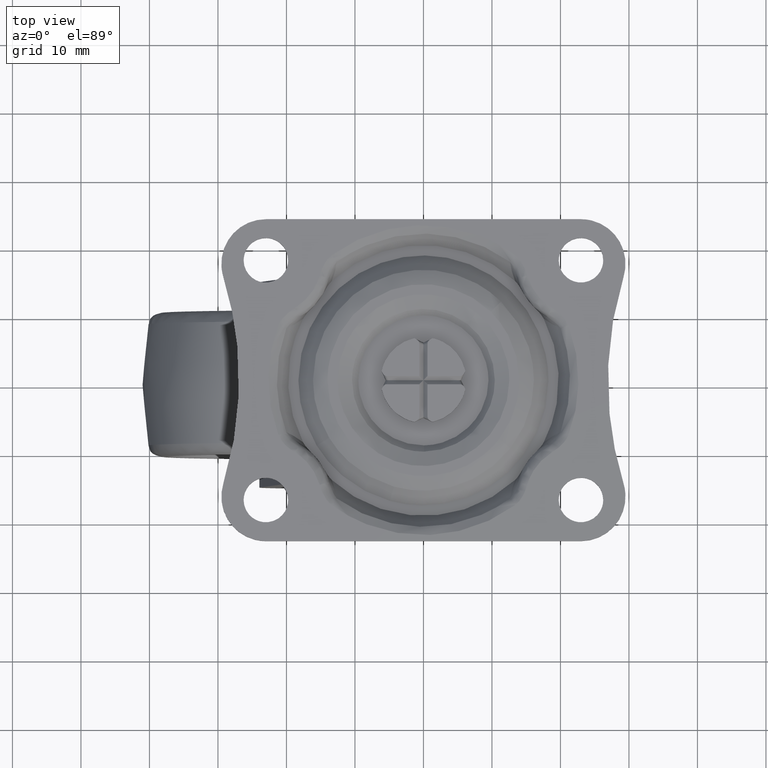
[diagram: clean part render]
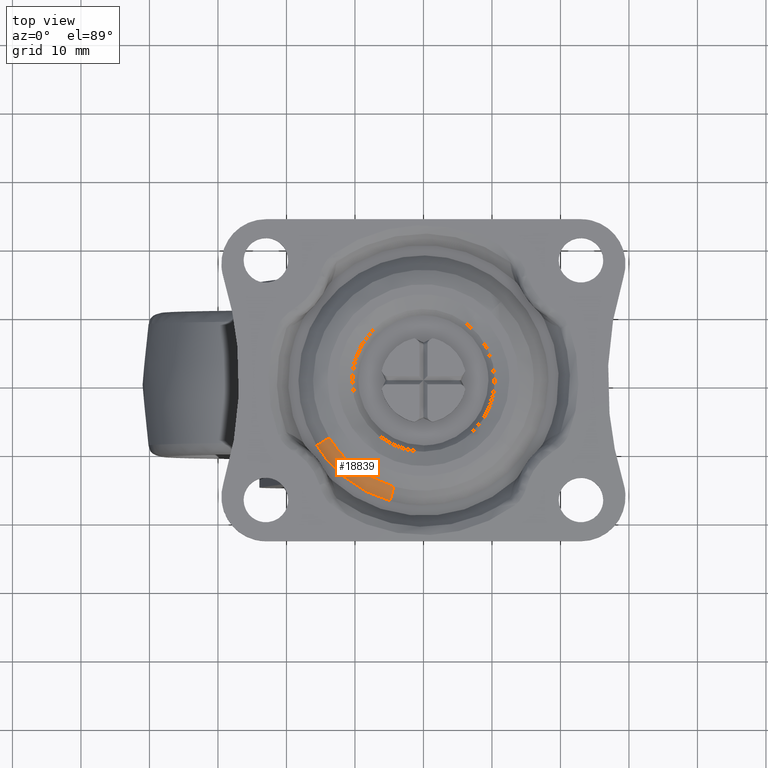
[diagram: same view with one face highlighted and labeled with its STEP entity id]
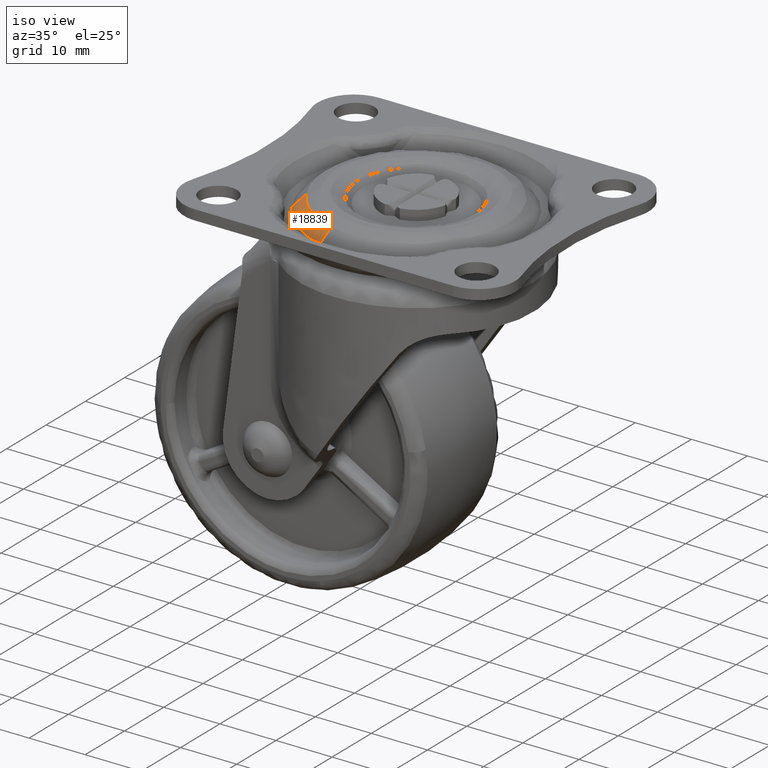
[diagram: same view with one face highlighted and labeled with its STEP entity id]
A machine part, top view. The second image highlights one B-rep face of the part: STEP entity #18839.
A second angle (iso view) of the same face is appended — the face is thin or edge-on in the first view.
In plain terms, the highlighted face is a freeform B-spline surface patch.
Its self-contained STEP definition (entity closure, byte-faithful):
#18650=CARTESIAN_POINT('',(-13.766875962829531,-8.402822959233593,-0.878679656442956));
#18651=VERTEX_POINT('',#18650);
#18714=CARTESIAN_POINT('',(-4.310202159786732,-15.542086886973800,-0.878679656452758));
#18715=VERTEX_POINT('',#18714);
#18731=CARTESIAN_POINT('',(-4.877100363526331,-17.586255771041319,-3.000000000010767));
#18732=VERTEX_POINT('',#18731);
#18733=CARTESIAN_POINT('',(-4.310202159786732,-15.542086886973800,-0.878679656452758));
#18734=CARTESIAN_POINT('',(-4.877100363526331,-17.586255771041319,-3.000000000010767));
#18735=QUASI_UNIFORM_CURVE('',1,(#18733,#18734),.UNSPECIFIED.,.F.,.U.);
#18736=EDGE_CURVE('',#18715,#18732,#18735,.T.);
#18772=CARTESIAN_POINT('',(-15.577560697702980,-9.508002035621701,-3.000000000000197));
#18773=VERTEX_POINT('',#18772);
#18787=CARTESIAN_POINT('',(-13.766875962829531,-8.402822959233593,-0.878679656442956));
#18788=CARTESIAN_POINT('',(-15.577560697702980,-9.508002035621701,-3.000000000000197));
#18789=QUASI_UNIFORM_CURVE('',1,(#18787,#18788),.UNSPECIFIED.,.F.,.U.);
#18790=EDGE_CURVE('',#18651,#18773,#18789,.T.);
#18795=CARTESIAN_POINT('',(-4.296029704532521,-15.490982664720660,-0.825646647674923));
#18796=CARTESIAN_POINT('',(-10.413955012749025,-13.794331818027372,-0.825646647674923));
#18797=CARTESIAN_POINT('',(-13.721608844329149,-8.375193482190726,-0.825646647674923));
#18798=CARTESIAN_POINT('',(-4.891627129900578,-17.638637598715778,-3.054358833808127));
#18799=CARTESIAN_POINT('',(-11.857735717279096,-15.706764710849701,-3.054358833808128));
#18800=CARTESIAN_POINT('',(-15.623959494038933,-9.536322249454438,-3.054358833808127));
#18808=(BOUNDED_SURFACE()B_SPLINE_SURFACE(2,1,((#18795,#18798),(#18796,#18799),(#18797,#18800)),.UNSPECIFIED.,.F.,.F.,.U.)B_SPLINE_SURFACE_WITH_KNOTS((3,3),(2,2),(0.0,14.553279147937159),(0.0,3.151875000255762),.UNSPECIFIED.)GEOMETRIC_REPRESENTATION_ITEM()RATIONAL_B_SPLINE_SURFACE(((1.0,1.0),(0.859411254969543,0.859411254969543),(0.853787705168325,0.853787705168325)))REPRESENTATION_ITEM('')SURFACE());
#18809=CARTESIAN_POINT('',(-4.310202159786732,-15.542086886973793,-0.878679656452758));
#18810=CARTESIAN_POINT('',(-10.448310294366294,-13.839838847055196,-0.878679656440359));
#18811=CARTESIAN_POINT('',(-13.766875962829538,-8.402822959233594,-0.878679656442956));
#18819=(BOUNDED_CURVE()B_SPLINE_CURVE(2,(#18809,#18810,#18811),.UNSPECIFIED.,.F.,.U.)B_SPLINE_CURVE_WITH_KNOTS((3,3),(0.295548826636269,0.410988855203605),.UNSPECIFIED.)CURVE()GEOMETRIC_REPRESENTATION_ITEM()RATIONAL_B_SPLINE_CURVE((0.912717717215992,0.826753831897068,0.865692738529934))REPRESENTATION_ITEM(''));
#18820=EDGE_CURVE('',#18715,#18651,#18819,.T.);
#18821=ORIENTED_EDGE('',*,*,#18820,.T.);
#18822=ORIENTED_EDGE('',*,*,#18790,.T.);
#18823=CARTESIAN_POINT('',(-4.877100363526331,-17.586255771041323,-3.000000000010767));
#18824=CARTESIAN_POINT('',(-11.822521553809800,-15.660120006050215,-3.0));
#18825=CARTESIAN_POINT('',(-15.577560697702980,-9.508002035621701,-3.000000000000197));
#18833=(BOUNDED_CURVE()B_SPLINE_CURVE(2,(#18823,#18824,#18825),.UNSPECIFIED.,.F.,.U.)B_SPLINE_CURVE_WITH_KNOTS((3,3),(0.795548826635736,0.910988855204415),.UNSPECIFIED.)CURVE()GEOMETRIC_REPRESENTATION_ITEM()RATIONAL_B_SPLINE_CURVE((0.912717717216786,0.826753831896284,0.865692738530481))REPRESENTATION_ITEM(''));
#18834=EDGE_CURVE('',#18732,#18773,#18833,.T.);
#18835=ORIENTED_EDGE('',*,*,#18834,.F.);
#18836=ORIENTED_EDGE('',*,*,#18736,.F.);
#18837=EDGE_LOOP('',(#18821,#18822,#18835,#18836));
#18838=FACE_OUTER_BOUND('',#18837,.T.);
#18839=ADVANCED_FACE('',(#18838),#18808,.T.);